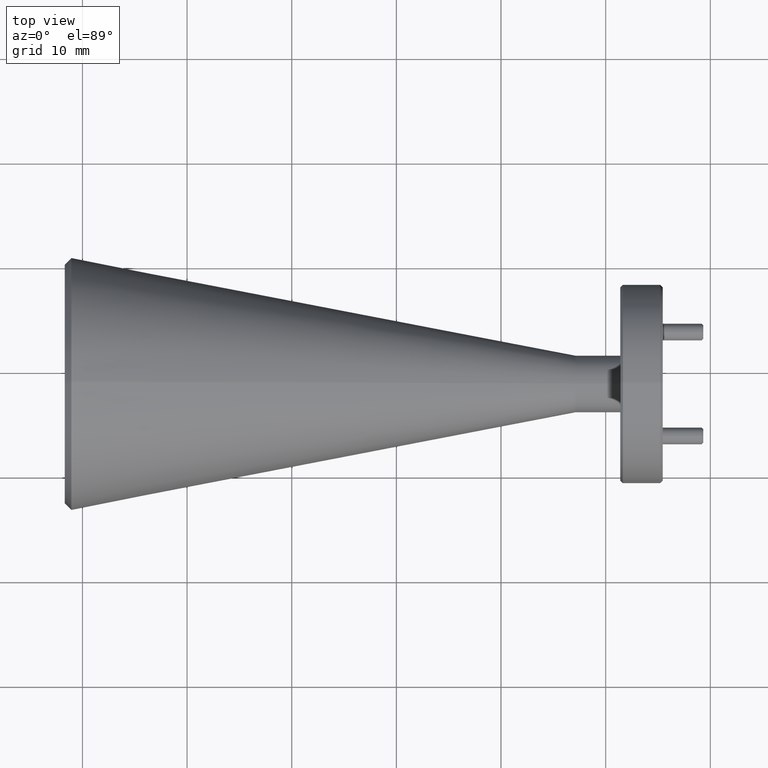
[diagram: clean part render]
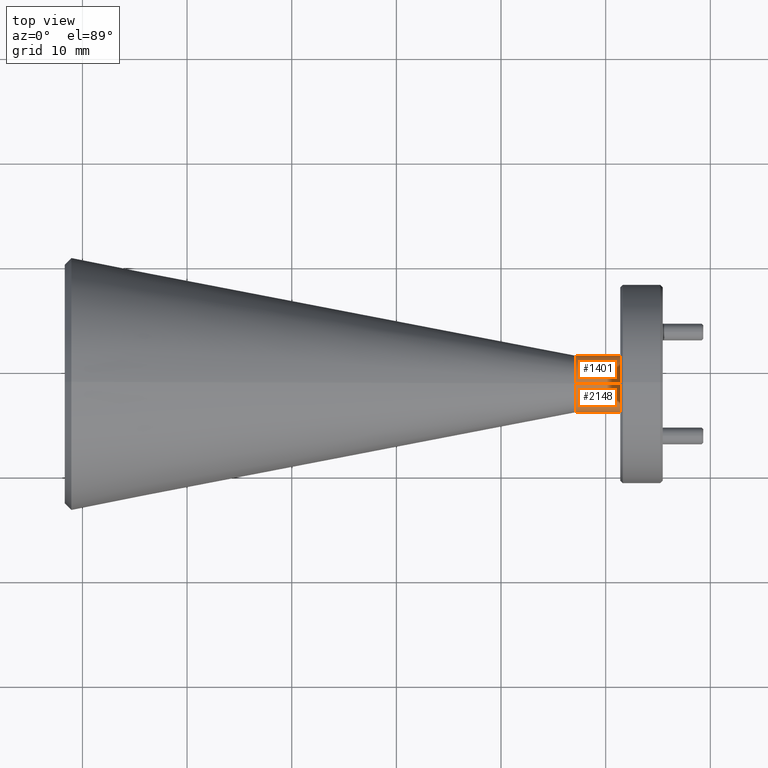
[diagram: same view with one multi-face feature highlighted, each face labeled with its STEP entity id]
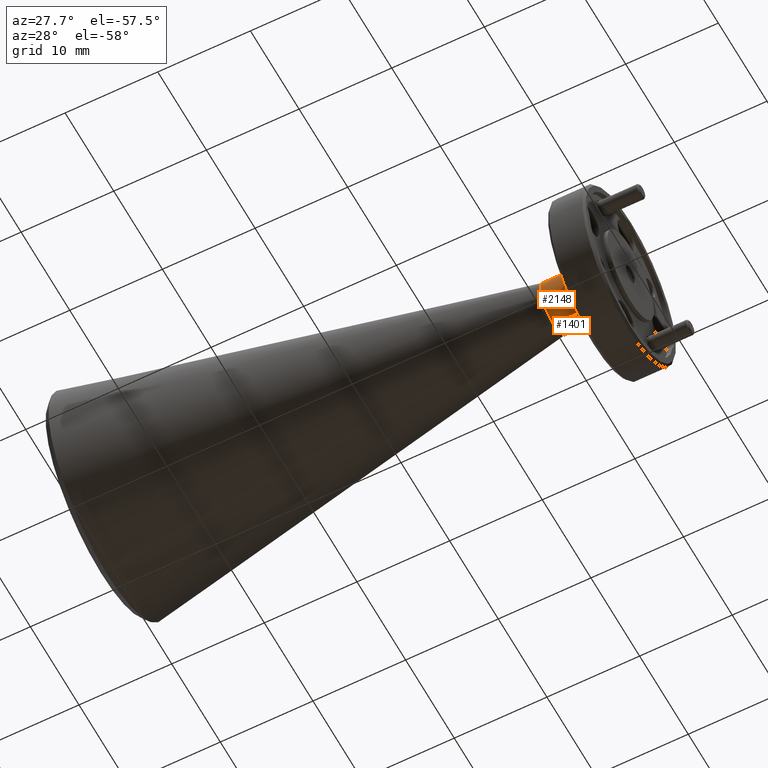
[diagram: same view with one multi-face feature highlighted, each face labeled with its STEP entity id]
A machine part, top view. The highlighted faces form ONE feature: a constant-radius fillet chain: 2 tangent blend faces with common blend radius 2.7178 mm. The faces share edges in the B-rep.
A second angle (auxiliary view) of the same feature is appended — it is thin or edge-on in the first view.
Their STEP definitions:
[1] entity #2148 (Cylinder):
#30 = ORIENTED_EDGE ( 'NONE', *, *, #821, .T. ) ;
#135 = ORIENTED_EDGE ( 'NONE', *, *, #1299, .F. ) ;
#151 = CARTESIAN_POINT ( 'NONE',  ( 1.461111115390730797, 1.132380905805825178, 1.361287461640205976 ) ) ;
#276 = LINE ( 'NONE', #639, #772 ) ;
#323 = EDGE_LOOP ( 'NONE', ( #135, #30, #2094, #956 ) ) ;
#443 = EDGE_CURVE ( 'NONE', #768, #2332, #976, .T. ) ;
#486 = DIRECTION ( 'NONE',  ( 1.000000000000000000, -0.000000000000000000, -0.000000000000000000 ) ) ;
#521 = EDGE_CURVE ( 'NONE', #1362, #2332, #2296, .T. ) ;
#527 = CARTESIAN_POINT ( 'NONE',  ( 1.629620190425749904, 1.132380905805825178, 1.361287461640205976 ) ) ;
#611 = CARTESIAN_POINT ( 'NONE',  ( 1.461111115390730797, 1.132380905805825178, 1.147287461640206008 ) ) ;
#639 = CARTESIAN_POINT ( 'NONE',  ( 1.789620190425750046, 1.132380905805825178, 1.361287461640205976 ) ) ;
#760 = FACE_OUTER_BOUND ( 'NONE', #323, .T. ) ;
#768 = VERTEX_POINT ( 'NONE', #611 ) ;
#771 = DIRECTION ( 'NONE',  ( 0.000000000000000000, 0.000000000000000000, -1.000000000000000000 ) ) ;
#772 = VECTOR ( 'NONE', #1372, 39.37007874015748143 ) ;
#821 = EDGE_CURVE ( 'NONE', #1701, #768, #1803, .T. ) ;
#940 = DIRECTION ( 'NONE',  ( 1.000000000000000000, -0.000000000000000000, -0.000000000000000000 ) ) ;
#956 = ORIENTED_EDGE ( 'NONE', *, *, #521, .F. ) ;
#975 = AXIS2_PLACEMENT_3D ( 'NONE', #1490, #940, #771 ) ;
#976 = LINE ( 'NONE', #997, #1121 ) ;
#997 = CARTESIAN_POINT ( 'NONE',  ( 1.789620190425750046, 1.132380905805825178, 1.147287461640206008 ) ) ;
#1078 = AXIS2_PLACEMENT_3D ( 'NONE', #2168, #1760, #1598 ) ;
#1121 = VECTOR ( 'NONE', #1569, 39.37007874015748143 ) ;
#1299 = EDGE_CURVE ( 'NONE', #1701, #1362, #276, .T. ) ;
#1315 = CYLINDRICAL_SURFACE ( 'NONE', #975, 0.1069999999999999840 ) ;
#1352 = AXIS2_PLACEMENT_3D ( 'NONE', #2133, #486, #2251 ) ;
#1362 = VERTEX_POINT ( 'NONE', #527 ) ;
#1372 = DIRECTION ( 'NONE',  ( 1.000000000000000000, -0.000000000000000000, -0.000000000000000000 ) ) ;
#1490 = CARTESIAN_POINT ( 'NONE',  ( 1.789620190425750046, 1.132380905805825178, 1.254287461640205992 ) ) ;
#1565 = CARTESIAN_POINT ( 'NONE',  ( 1.629620190425749904, 1.132380905805825178, 1.147287461640206008 ) ) ;
#1569 = DIRECTION ( 'NONE',  ( 1.000000000000000000, -0.000000000000000000, -0.000000000000000000 ) ) ;
#1598 = DIRECTION ( 'NONE',  ( 0.000000000000000000, 0.000000000000000000, -1.000000000000000000 ) ) ;
#1701 = VERTEX_POINT ( 'NONE', #151 ) ;
#1760 = DIRECTION ( 'NONE',  ( 1.000000000000000000, -0.000000000000000000, -0.000000000000000000 ) ) ;
#1803 = CIRCLE ( 'NONE', #1352, 0.1069999999999999840 ) ;
#2094 = ORIENTED_EDGE ( 'NONE', *, *, #443, .T. ) ;
#2133 = CARTESIAN_POINT ( 'NONE',  ( 1.461111115390730797, 1.132380905805825178, 1.254287461640205992 ) ) ;
#2148 = ADVANCED_FACE ( 'NONE', ( #760 ), #1315, .T. ) ;
#2168 = CARTESIAN_POINT ( 'NONE',  ( 1.629620190425749904, 1.132380905805825178, 1.254287461640205992 ) ) ;
#2251 = DIRECTION ( 'NONE',  ( 0.000000000000000000, 0.000000000000000000, -1.000000000000000000 ) ) ;
#2296 = CIRCLE ( 'NONE', #1078, 0.1069999999999999840 ) ;
#2332 = VERTEX_POINT ( 'NONE', #1565 ) ;
[2] entity #1401 (Cylinder):
#16 = CIRCLE ( 'NONE', #2307, 0.1069999999999999840 ) ;
#39 = CYLINDRICAL_SURFACE ( 'NONE', #882, 0.1069999999999999840 ) ;
#121 = DIRECTION ( 'NONE',  ( 1.000000000000000000, -0.000000000000000000, -0.000000000000000000 ) ) ;
#151 = CARTESIAN_POINT ( 'NONE',  ( 1.461111115390730797, 1.132380905805825178, 1.361287461640205976 ) ) ;
#276 = LINE ( 'NONE', #639, #772 ) ;
#418 = CARTESIAN_POINT ( 'NONE',  ( 1.629620190425749904, 1.132380905805825178, 1.254287461640205992 ) ) ;
#443 = EDGE_CURVE ( 'NONE', #768, #2332, #976, .T. ) ;
#527 = CARTESIAN_POINT ( 'NONE',  ( 1.629620190425749904, 1.132380905805825178, 1.361287461640205976 ) ) ;
#603 = DIRECTION ( 'NONE',  ( 0.000000000000000000, 0.000000000000000000, -1.000000000000000000 ) ) ;
#610 = EDGE_LOOP ( 'NONE', ( #1466, #2201, #1336, #1332 ) ) ;
#611 = CARTESIAN_POINT ( 'NONE',  ( 1.461111115390730797, 1.132380905805825178, 1.147287461640206008 ) ) ;
#639 = CARTESIAN_POINT ( 'NONE',  ( 1.789620190425750046, 1.132380905805825178, 1.361287461640205976 ) ) ;
#768 = VERTEX_POINT ( 'NONE', #611 ) ;
#772 = VECTOR ( 'NONE', #1372, 39.37007874015748143 ) ;
#820 = DIRECTION ( 'NONE',  ( 0.000000000000000000, 0.000000000000000000, -1.000000000000000000 ) ) ;
#854 = CIRCLE ( 'NONE', #2121, 0.1069999999999999840 ) ;
#882 = AXIS2_PLACEMENT_3D ( 'NONE', #928, #2244, #603 ) ;
#928 = CARTESIAN_POINT ( 'NONE',  ( 1.789620190425750046, 1.132380905805825178, 1.254287461640205992 ) ) ;
#976 = LINE ( 'NONE', #997, #1121 ) ;
#997 = CARTESIAN_POINT ( 'NONE',  ( 1.789620190425750046, 1.132380905805825178, 1.147287461640206008 ) ) ;
#1121 = VECTOR ( 'NONE', #1569, 39.37007874015748143 ) ;
#1299 = EDGE_CURVE ( 'NONE', #1701, #1362, #276, .T. ) ;
#1332 = ORIENTED_EDGE ( 'NONE', *, *, #443, .F. ) ;
#1336 = ORIENTED_EDGE ( 'NONE', *, *, #2311, .F. ) ;
#1362 = VERTEX_POINT ( 'NONE', #527 ) ;
#1372 = DIRECTION ( 'NONE',  ( 1.000000000000000000, -0.000000000000000000, -0.000000000000000000 ) ) ;
#1401 = ADVANCED_FACE ( 'NONE', ( #1681 ), #39, .T. ) ;
#1427 = DIRECTION ( 'NONE',  ( 0.000000000000000000, 0.000000000000000000, -1.000000000000000000 ) ) ;
#1466 = ORIENTED_EDGE ( 'NONE', *, *, #1714, .T. ) ;
#1565 = CARTESIAN_POINT ( 'NONE',  ( 1.629620190425749904, 1.132380905805825178, 1.147287461640206008 ) ) ;
#1569 = DIRECTION ( 'NONE',  ( 1.000000000000000000, -0.000000000000000000, -0.000000000000000000 ) ) ;
#1629 = CARTESIAN_POINT ( 'NONE',  ( 1.461111115390730797, 1.132380905805825178, 1.254287461640205992 ) ) ;
#1681 = FACE_OUTER_BOUND ( 'NONE', #610, .T. ) ;
#1701 = VERTEX_POINT ( 'NONE', #151 ) ;
#1714 = EDGE_CURVE ( 'NONE', #768, #1701, #16, .T. ) ;
#2121 = AXIS2_PLACEMENT_3D ( 'NONE', #418, #2276, #820 ) ;
#2201 = ORIENTED_EDGE ( 'NONE', *, *, #1299, .T. ) ;
#2244 = DIRECTION ( 'NONE',  ( 1.000000000000000000, -0.000000000000000000, -0.000000000000000000 ) ) ;
#2276 = DIRECTION ( 'NONE',  ( 1.000000000000000000, -0.000000000000000000, -0.000000000000000000 ) ) ;
#2307 = AXIS2_PLACEMENT_3D ( 'NONE', #1629, #121, #1427 ) ;
#2311 = EDGE_CURVE ( 'NONE', #2332, #1362, #854, .T. ) ;
#2332 = VERTEX_POINT ( 'NONE', #1565 ) ;